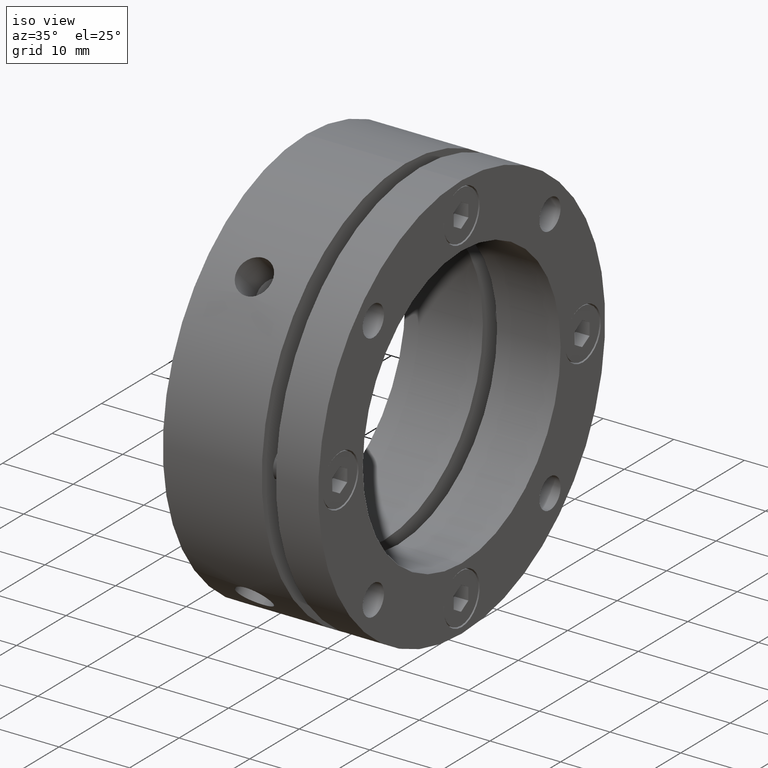
[diagram: clean part render]
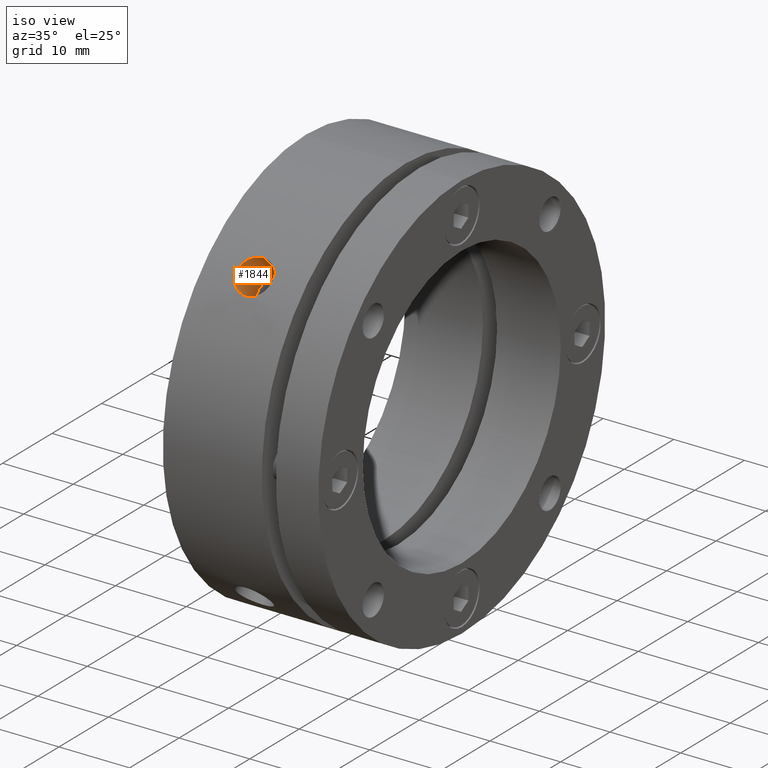
[diagram: same view with one face highlighted and labeled with its STEP entity id]
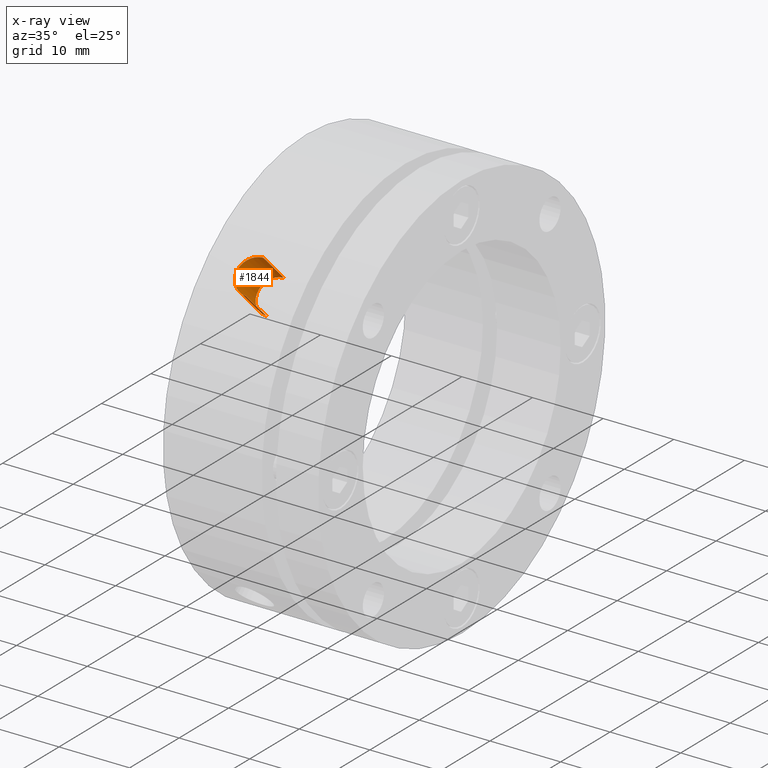
[diagram: x-ray of the same camera — body ghosted, the highlighted face saturated]
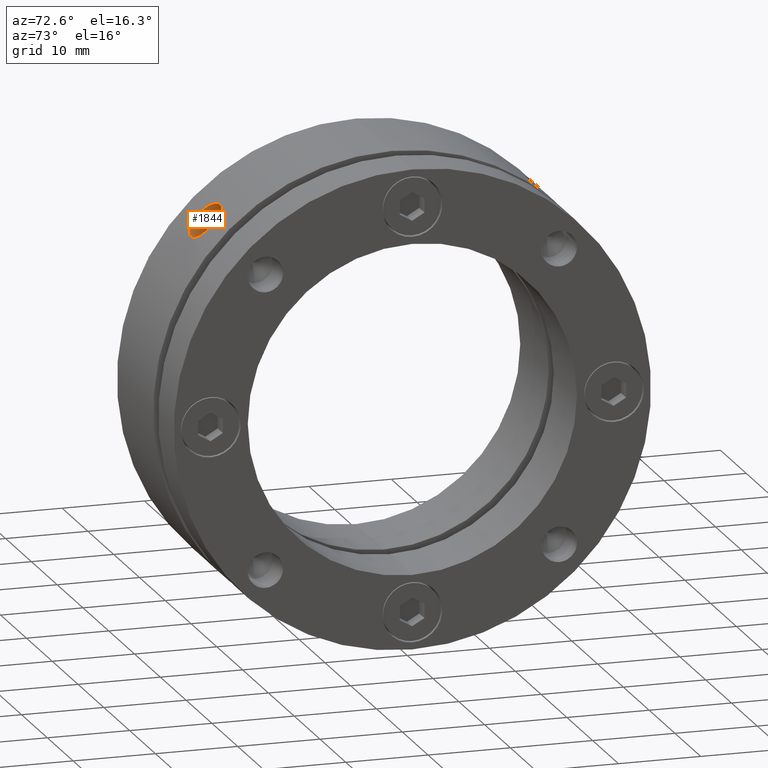
[diagram: same view with one face highlighted and labeled with its STEP entity id]
A machine part, iso view. The second image highlights one B-rep face of the part: STEP entity #1844.
The next image is the same camera in x-ray: the body ghosted, the highlighted face saturated — about 0% of this face is hidden behind the body in this view.
A second angle (auxiliary view) of the same face is appended — the face is thin or edge-on in the first view.
In plain terms, the highlighted cylindrical surface (edge-blend (fillet) strip) has radius 2.5 mm, axis along (0, -0.7071, 0.7071).
Its self-contained STEP definition (entity closure, byte-faithful):
#114 = ORIENTED_EDGE ( 'NONE', *, *, #3447, .F. ) ;
#115 = ORIENTED_EDGE ( 'NONE', *, *, #3555, .F. ) ;
#116 = ORIENTED_EDGE ( 'NONE', *, *, #3446, .T. ) ;
#117 = ORIENTED_EDGE ( 'NONE', *, *, #3556, .F. ) ;
#326 = EDGE_LOOP ( 'NONE', ( #117, #116, #115, #114 ) ) ;
#453 = VERTEX_POINT ( 'NONE', #2062 ) ;
#454 = VERTEX_POINT ( 'NONE', #2063 ) ;
#458 = VERTEX_POINT ( 'NONE', #2067 ) ;
#468 = VERTEX_POINT ( 'NONE', #2077 ) ;
#1050 = B_SPLINE_CURVE_WITH_KNOTS ( 'NONE', 3,
 ( #3266, #3267, #3271, #3272, #3273, #3274, #3275, #3276, #3277, #3278, #3279, #3280, #3281, #3282, #3283, #3284, #3285, #3286, #3287, #3288, #3289, #3290, #3291, #3292, #3293, #3294, #3295, #3296, #3297, #3298, #3299, #3300, #3301, #3302 ),
 .UNSPECIFIED., .F., .F.,
 ( 4, 2, 2, 2, 2, 2, 2, 2, 2, 2, 2, 2, 2, 2, 2, 2, 4 ),
 ( 0.01172885886875083300, 0.01221748855719005700, 0.01270611824562928100, 0.01319474793406850600, 0.01368337762250772900, 0.01417200731094695300, 0.01466063699938617700, 0.01514926668782540200, 0.01563789637626462500, 0.01612652606470384900, 0.01661515575314307500, 0.01710378544158229800, 0.01759241513002152100, 0.01808104481846074500, 0.01856967450689996800, 0.01905830419533919400, 0.01954693388377841700 ),
 .UNSPECIFIED. ) ;
#1075 = AXIS2_PLACEMENT_3D ( 'NONE', #2602, #2600, #2599 ) ;
#1273 = FACE_OUTER_BOUND ( 'NONE', #326, .T. ) ;
#1288 = CYLINDRICAL_SURFACE ( 'NONE', #1075, 2.499999999999998700 ) ;
#1575 = LINE ( 'NONE', #2972, #1581 ) ;
#1577 = LINE ( 'NONE', #3432, #1583 ) ;
#1581 = VECTOR ( 'NONE', #2974, 1000.000000000000000 ) ;
#1583 = VECTOR ( 'NONE', #2975, 1000.000000000000000 ) ;
#1648 = CIRCLE ( 'NONE', #3494, 2.500000000000000000 ) ;
#1844 = ADVANCED_FACE ( 'NONE', ( #1273 ), #1288, .F. ) ;
#2062 = CARTESIAN_POINT ( 'NONE',  ( 6.999999999999992900, -18.66199075484799200, 22.19752466078072900 ) ) ;
#2063 = CARTESIAN_POINT ( 'NONE',  ( 6.999999999999992900, -22.19752466078072900, 18.66199075484798800 ) ) ;
#2067 = CARTESIAN_POINT ( 'NONE',  ( 6.999999999999992900, -18.03122291790290200, 14.49568901667829300 ) ) ;
#2077 = CARTESIAN_POINT ( 'NONE',  ( 6.999999999999992900, -14.49568901667828900, 18.03122291790289800 ) ) ;
#2599 = DIRECTION ( 'NONE',  ( 0.0000000000000000000, -0.7071067811865482400, -0.7071067811865468000 ) ) ;
#2600 = DIRECTION ( 'NONE',  ( 0.0000000000000000000, -0.7071067811865470200, 0.7071067811865480200 ) ) ;
#2602 = CARTESIAN_POINT ( 'NONE',  ( 6.999999999999992900, -18.38477631085023800, 18.38477631085023500 ) ) ;
#2972 = CARTESIAN_POINT ( 'NONE',  ( 6.999999999999992900, -16.61700935788387000, 20.15254326381660400 ) ) ;
#2974 = DIRECTION ( 'NONE',  ( 0.0000000000000000000, -0.7071067811865470200, 0.7071067811865480200 ) ) ;
#2975 = DIRECTION ( 'NONE',  ( 0.0000000000000000000, -0.7071067811865470200, 0.7071067811865480200 ) ) ;
#3266 = CARTESIAN_POINT ( 'NONE',  ( 6.999999999999992900, -22.19752466078072900, 18.66199075484798800 ) ) ;
#3267 = CARTESIAN_POINT ( 'NONE',  ( 6.836889293315132400, -22.19752466078072600, 18.66199075484798400 ) ) ;
#3271 = CARTESIAN_POINT ( 'NONE',  ( 6.671209411699220700, -22.18698607935332800, 18.67454627982971600 ) ) ;
#3272 = CARTESIAN_POINT ( 'NONE',  ( 6.350602221593689500, -22.14559756433346700, 18.72360912221539300 ) ) ;
#3273 = CARTESIAN_POINT ( 'NONE',  ( 6.194766286574622200, -22.11497340511872200, 18.75984821444914300 ) ) ;
#3274 = CARTESIAN_POINT ( 'NONE',  ( 5.892077017659621800, -22.03341440721714100, 18.85557220818596800 ) ) ;
#3275 = CARTESIAN_POINT ( 'NONE',  ( 5.745830729501784100, -21.98232687178327500, 18.91521975453382300 ) ) ;
#3276 = CARTESIAN_POINT ( 'NONE',  ( 5.475107132603087100, -21.86353243827018700, 19.05240620973999900 ) ) ;
#3277 = CARTESIAN_POINT ( 'NONE',  ( 5.348899357913803800, -21.79542242833629100, 19.13042679679525900 ) ) ;
#3278 = CARTESIAN_POINT ( 'NONE',  ( 5.115517966158140700, -21.64047073392180600, 19.30553533760305400 ) ) ;
#3279 = CARTESIAN_POINT ( 'NONE',  ( 5.012136730428756500, -21.55612772977841700, 19.39978651902034600 ) ) ;
#3280 = CARTESIAN_POINT ( 'NONE',  ( 4.831177672506672000, -21.37390565747477900, 19.60037031873258700 ) ) ;
#3281 = CARTESIAN_POINT ( 'NONE',  ( 4.752923106869285000, -21.27482800575629400, 19.70798420472280900 ) ) ;
#3282 = CARTESIAN_POINT ( 'NONE',  ( 4.627524710443265300, -21.06777683135185700, 19.92916775664427900 ) ) ;
#3283 = CARTESIAN_POINT ( 'NONE',  ( 4.580265046816364800, -20.96038554305368600, 20.04215347677030200 ) ) ;
#3284 = CARTESIAN_POINT ( 'NONE',  ( 4.516342887760563600, -20.73762049845395700, 20.27256210156900800 ) ) ;
#3285 = CARTESIAN_POINT ( 'NONE',  ( 4.499883565422372600, -20.62167052778379500, 20.39053697614956200 ) ) ;
#3286 = CARTESIAN_POINT ( 'NONE',  ( 4.500117689778694100, -20.38801750899700900, 20.62416145168139200 ) ) ;
#3287 = CARTESIAN_POINT ( 'NONE',  ( 4.516447802042617500, -20.27215593875856600, 20.73801408011929900 ) ) ;
#3288 = CARTESIAN_POINT ( 'NONE',  ( 4.580206628080246900, -20.04239206593743500, 20.96015397528888300 ) ) ;
#3289 = CARTESIAN_POINT ( 'NONE',  ( 4.628416924226099700, -19.92726727274734000, 21.06957362854537400 ) ) ;
#3290 = CARTESIAN_POINT ( 'NONE',  ( 4.754105446092657900, -19.70623094034710800, 21.27645120723633100 ) ) ;
#3291 = CARTESIAN_POINT ( 'NONE',  ( 4.830982297680537700, -19.60056917450994300, 21.37372611167655000 ) ) ;
#3292 = CARTESIAN_POINT ( 'NONE',  ( 5.012565598953405500, -19.39932887028400900, 21.55654237683489400 ) ) ;
#3293 = CARTESIAN_POINT ( 'NONE',  ( 5.118178343002601800, -19.30341673895289700, 21.64235231917999500 ) ) ;
#3294 = CARTESIAN_POINT ( 'NONE',  ( 5.348833087511976300, -19.13060039567769600, 21.79526187514384400 ) ) ;
#3295 = CARTESIAN_POINT ( 'NONE',  ( 5.474693285963685000, -19.05255251492175400, 21.86340826021076100 ) ) ;
#3296 = CARTESIAN_POINT ( 'NONE',  ( 5.748046894809354200, -18.91416056203410500, 21.98324153349767200 ) ) ;
#3297 = CARTESIAN_POINT ( 'NONE',  ( 5.893454299515427800, -18.85511098082234900, 22.03380790690971800 ) ) ;
#3298 = CARTESIAN_POINT ( 'NONE',  ( 6.194281383739775200, -18.76002730759317000, 22.11482028857760400 ) ) ;
#3299 = CARTESIAN_POINT ( 'NONE',  ( 6.351927524470917200, -18.72328271223128500, 22.14587360183626800 ) ) ;
#3300 = CARTESIAN_POINT ( 'NONE',  ( 6.674643550635278400, -18.67414618415509900, 22.18732289852592700 ) ) ;
#3301 = CARTESIAN_POINT ( 'NONE',  ( 6.836889045201711900, -18.66199075484798400, 22.19752466078072900 ) ) ;
#3302 = CARTESIAN_POINT ( 'NONE',  ( 6.999999999999992900, -18.66199075484799200, 22.19752466078072900 ) ) ;
#3303 = CARTESIAN_POINT ( 'NONE',  ( 6.999999999999992900, -16.26345596729059700, 16.26345596729059300 ) ) ;
#3304 = DIRECTION ( 'NONE',  ( 0.0000000000000000000, -0.7071067811865470200, 0.7071067811865480200 ) ) ;
#3305 = DIRECTION ( 'NONE',  ( 0.0000000000000000000, -0.7071067811865477900, -0.7071067811865471300 ) ) ;
#3432 = CARTESIAN_POINT ( 'NONE',  ( 6.999999999999992900, -20.15254326381661100, 16.61700935788387000 ) ) ;
#3446 = EDGE_CURVE ( 'NONE', #468, #453, #1575, .T. ) ;
#3447 = EDGE_CURVE ( 'NONE', #458, #454, #1577, .T. ) ;
#3494 = AXIS2_PLACEMENT_3D ( 'NONE', #3303, #3304, #3305 ) ;
#3555 = EDGE_CURVE ( 'NONE', #454, #453, #1050, .T. ) ;
#3556 = EDGE_CURVE ( 'NONE', #468, #458, #1648, .T. ) ;